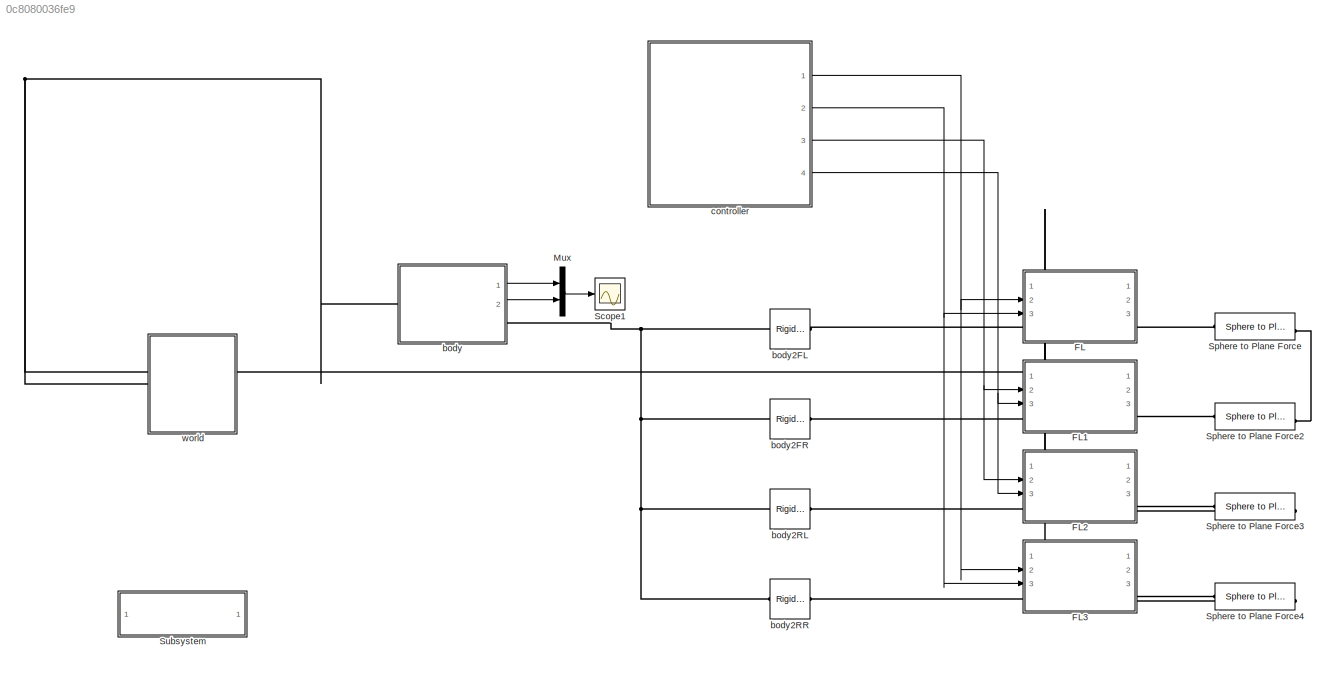
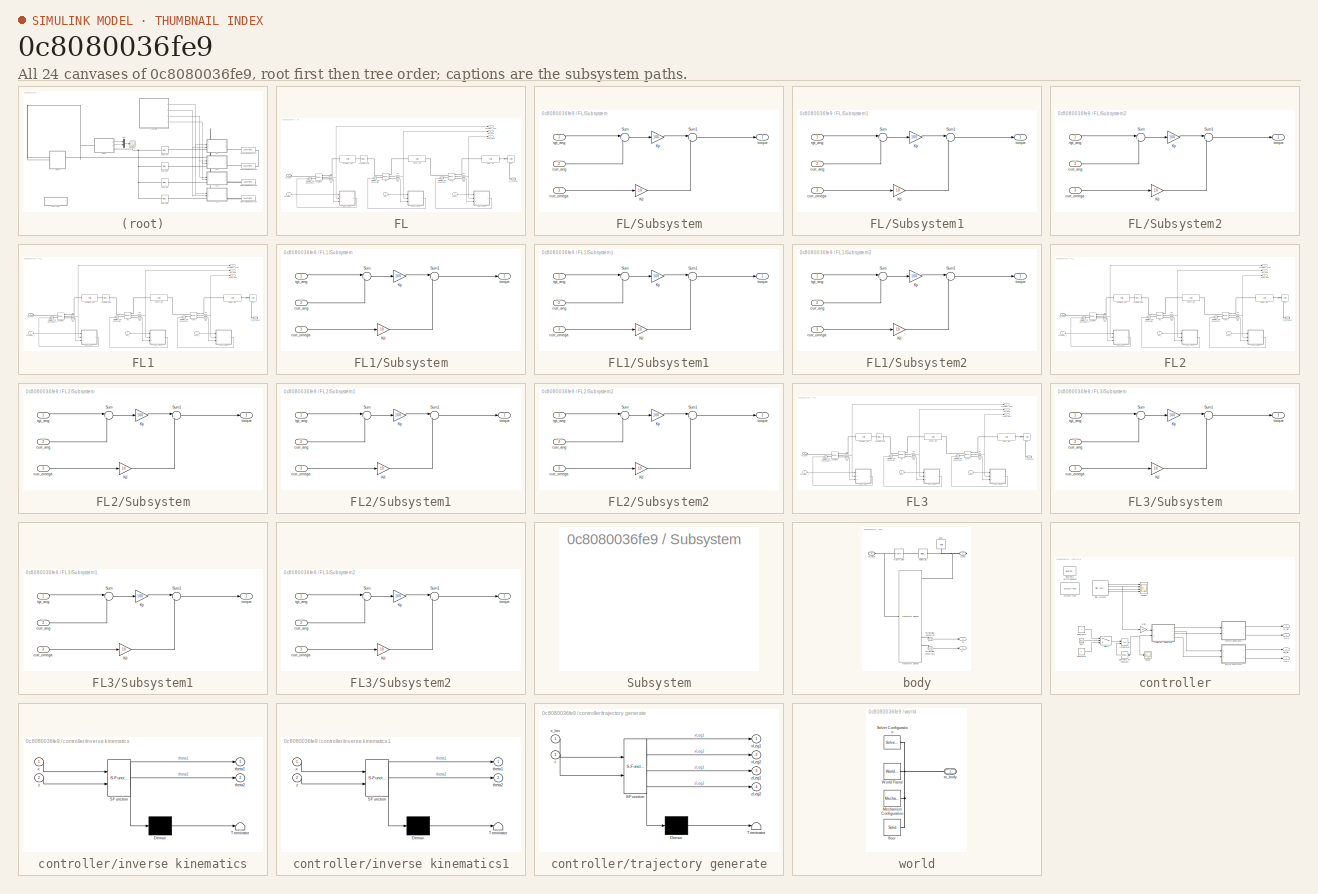
[diagram: thumbnail index - all 24 canvases of the model, root first then tree order]
MODEL slx_0c8080036fe9
KIND model
CONFIG AbsTol = auto
CONFIG EnableMultiTasking = on
CONFIG FixedStep = 0.001
CONFIG MaxStep = auto
CONFIG MinStep = auto
CONFIG RelTol = 1e-3
CONFIG SampleTimeConstraint = Unconstrained
CONFIG Solver = FixedStepAuto
CONFIG SolverName = FixedStepAuto
CONFIG StartTime = 0.0
CONFIG StopTime = 10
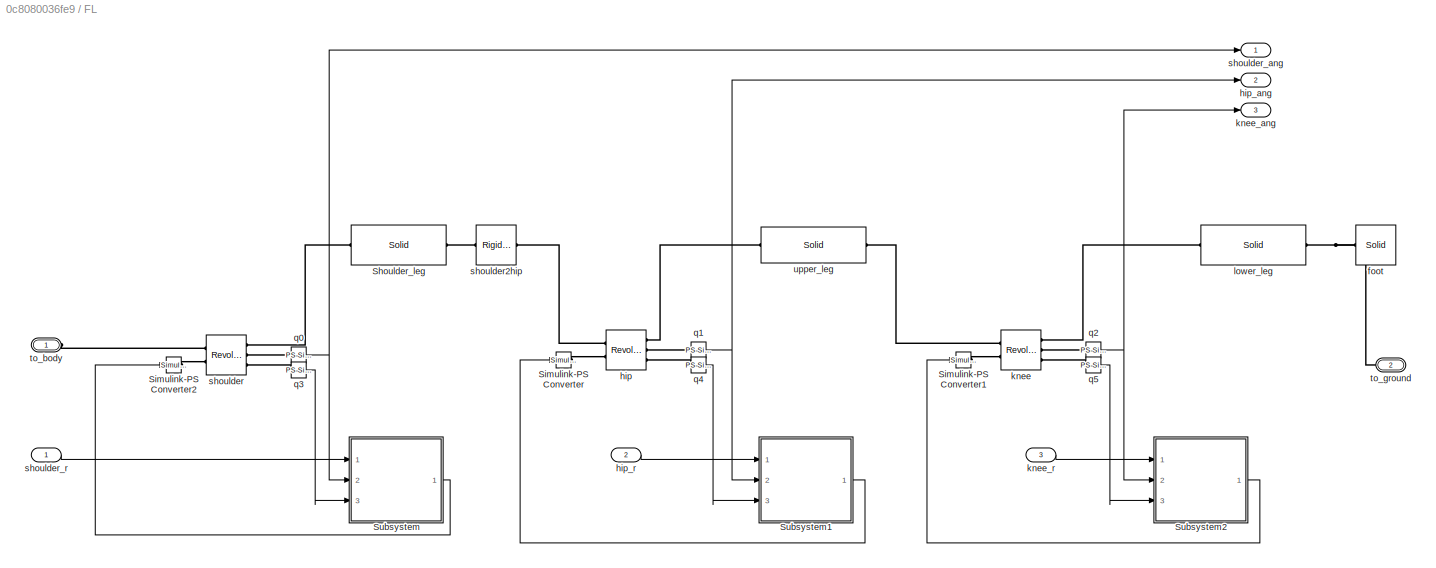
BLOCK [SubSystem] FL
  Ports = [3, 3, 0, 0, 0, 1, 1]
  RequestExecContextInheritance = off
BLOCK [Reference] FL/Shoulder_leg  REF=sm_lib/Body Elements/Solid
  Ports = [0, 0, 0, 0, 0, 1, 1]
  SourceBlock = sm_lib/Body Elements/Solid
  SourceProductBaseCode = MS
  SourceProductName = Simscape Multibody
  SourceType = Solid
BLOCK [Reference] FL/Simulink-PS Converter  REF=nesl_utility/Simulink-PS
Converter
  Ports = [1, 0, 0, 0, 0, 0, 1]
  SourceBlock = nesl_utility/Simulink-PS\nConverter
  SourceProductBaseCode = SS
  SourceProductName = Simscape
  SourceType = Simulink-PS\nConverter
BLOCK [Reference] FL/Simulink-PS Converter1  REF=nesl_utility/Simulink-PS
Converter
  Ports = [1, 0, 0, 0, 0, 0, 1]
  SourceBlock = nesl_utility/Simulink-PS\nConverter
  SourceProductBaseCode = SS
  SourceProductName = Simscape
  SourceType = Simulink-PS\nConverter
BLOCK [Reference] FL/Simulink-PS Converter2  REF=nesl_utility/Simulink-PS
Converter
  Ports = [1, 0, 0, 0, 0, 0, 1]
  SourceBlock = nesl_utility/Simulink-PS\nConverter
  SourceProductBaseCode = SS
  SourceProductName = Simscape
  SourceType = Simulink-PS\nConverter
BLOCK [SubSystem] FL/Subsystem
  Ports = [3, 1]
  RequestExecContextInheritance = off
BLOCK [Gain] FL/Subsystem/Kd
  Gain = 10
  OutDataTypeStr = Inherit: Inherit via internal rule
  ParamDataTypeStr = Inherit: Inherit via internal rule
  SaturateOnIntegerOverflow = off
BLOCK [Gain] FL/Subsystem/Kp
  Gain = 100
  OutDataTypeStr = Inherit: Inherit via internal rule
  ParamDataTypeStr = Inherit: Inherit via internal rule
  SaturateOnIntegerOverflow = off
BLOCK [Sum] FL/Subsystem/Sum
  IconShape = round
  InputSameDT = off
  Inputs = |+-
  OutDataTypeStr = Inherit: Inherit via internal rule
  Ports = [2, 1]
  SaturateOnIntegerOverflow = off
BLOCK [Sum] FL/Subsystem/Sum1
  IconShape = round
  InputSameDT = off
  Inputs = |+-
  OutDataTypeStr = Inherit: Inherit via internal rule
  Ports = [2, 1]
  SaturateOnIntegerOverflow = off
BLOCK [Inport] FL/Subsystem/curr_ang
  IconDisplay = Port number
  Port = 2
BLOCK [Inport] FL/Subsystem/curr_omega
  IconDisplay = Port number
  Port = 3
BLOCK [Inport] FL/Subsystem/tgt_ang
  IconDisplay = Port number
BLOCK [Outport] FL/Subsystem/torque
  IconDisplay = Port number
BLOCK [SubSystem] FL/Subsystem1
  Ports = [3, 1]
  RequestExecContextInheritance = off
BLOCK [Gain] FL/Subsystem1/Kd
  Gain = 10
  OutDataTypeStr = Inherit: Inherit via internal rule
  ParamDataTypeStr = Inherit: Inherit via internal rule
  SaturateOnIntegerOverflow = off
BLOCK [Gain] FL/Subsystem1/Kp
  Gain = 100
  OutDataTypeStr = Inherit: Inherit via internal rule
  ParamDataTypeStr = Inherit: Inherit via internal rule
  SaturateOnIntegerOverflow = off
BLOCK [Sum] FL/Subsystem1/Sum
  IconShape = round
  InputSameDT = off
  Inputs = |+-
  OutDataTypeStr = Inherit: Inherit via internal rule
  Ports = [2, 1]
  SaturateOnIntegerOverflow = off
BLOCK [Sum] FL/Subsystem1/Sum1
  IconShape = round
  InputSameDT = off
  Inputs = |+-
  OutDataTypeStr = Inherit: Inherit via internal rule
  Ports = [2, 1]
  SaturateOnIntegerOverflow = off
BLOCK [Inport] FL/Subsystem1/curr_ang
  IconDisplay = Port number
  Port = 2
BLOCK [Inport] FL/Subsystem1/curr_omega
  IconDisplay = Port number
  Port = 3
BLOCK [Inport] FL/Subsystem1/tgt_ang
  IconDisplay = Port number
BLOCK [Outport] FL/Subsystem1/torque
  IconDisplay = Port number
BLOCK [SubSystem] FL/Subsystem2
  Ports = [3, 1]
  RequestExecContextInheritance = off
BLOCK [Gain] FL/Subsystem2/Kd
  Gain = 10
  OutDataTypeStr = Inherit: Inherit via internal rule
  ParamDataTypeStr = Inherit: Inherit via internal rule
  SaturateOnIntegerOverflow = off
BLOCK [Gain] FL/Subsystem2/Kp
  Gain = 100
  OutDataTypeStr = Inherit: Inherit via internal rule
  ParamDataTypeStr = Inherit: Inherit via internal rule
  SaturateOnIntegerOverflow = off
BLOCK [Sum] FL/Subsystem2/Sum
  IconShape = round
  InputSameDT = off
  Inputs = |+-
  OutDataTypeStr = Inherit: Inherit via internal rule
  Ports = [2, 1]
  SaturateOnIntegerOverflow = off
BLOCK [Sum] FL/Subsystem2/Sum1
  IconShape = round
  InputSameDT = off
  Inputs = |+-
  OutDataTypeStr = Inherit: Inherit via internal rule
  Ports = [2, 1]
  SaturateOnIntegerOverflow = off
BLOCK [Inport] FL/Subsystem2/curr_ang
  IconDisplay = Port number
  Port = 2
BLOCK [Inport] FL/Subsystem2/curr_omega
  IconDisplay = Port number
  Port = 3
BLOCK [Inport] FL/Subsystem2/tgt_ang
  IconDisplay = Port number
BLOCK [Outport] FL/Subsystem2/torque
  IconDisplay = Port number
BLOCK [Reference] FL/foot  REF=sm_lib/Body Elements/Solid
  Ports = [0, 0, 0, 0, 0, 0, 1]
  SourceBlock = sm_lib/Body Elements/Solid
  SourceProductBaseCode = MS
  SourceProductName = Simscape Multibody
  SourceType = Solid
BLOCK [Reference] FL/hip  REF=sm_lib/Joints/Revolute Joint
  Ports = [0, 0, 0, 0, 0, 2, 3]
  SourceBlock = sm_lib/Joints/Revolute Joint
  SourceProductBaseCode = MS
  SourceProductName = Simscape Multibody
  SourceType = Revolute Joint
BLOCK [Outport] FL/hip_ang
  IconDisplay = Port number
  Port = 2
BLOCK [Inport] FL/hip_r
  IconDisplay = Port number
  Port = 2
BLOCK [Reference] FL/knee  REF=sm_lib/Joints/Revolute Joint
  Ports = [0, 0, 0, 0, 0, 2, 3]
  SourceBlock = sm_lib/Joints/Revolute Joint
  SourceProductBaseCode = MS
  SourceProductName = Simscape Multibody
  SourceType = Revolute Joint
BLOCK [Outport] FL/knee_ang
  IconDisplay = Port number
  Port = 3
BLOCK [Inport] FL/knee_r
  IconDisplay = Port number
  Port = 3
BLOCK [Reference] FL/lower_leg  REF=sm_lib/Body Elements/Solid
  Ports = [0, 0, 0, 0, 0, 1, 1]
  SourceBlock = sm_lib/Body Elements/Solid
  SourceProductBaseCode = MS
  SourceProductName = Simscape Multibody
  SourceType = Solid
BLOCK [Reference] FL/q0  REF=nesl_utility/PS-Simulink
Converter
  Ports = [0, 1, 0, 0, 0, 1]
  SourceBlock = nesl_utility/PS-Simulink\nConverter
  SourceProductBaseCode = SS
  SourceProductName = Simscape
  SourceType = PS-Simulink\nConverter
BLOCK [Reference] FL/q1  REF=nesl_utility/PS-Simulink
Converter
  Ports = [0, 1, 0, 0, 0, 1]
  SourceBlock = nesl_utility/PS-Simulink\nConverter
  SourceProductBaseCode = SS
  SourceProductName = Simscape
  SourceType = PS-Simulink\nConverter
BLOCK [Reference] FL/q2  REF=nesl_utility/PS-Simulink
Converter
  Ports = [0, 1, 0, 0, 0, 1]
  SourceBlock = nesl_utility/PS-Simulink\nConverter
  SourceProductBaseCode = SS
  SourceProductName = Simscape
  SourceType = PS-Simulink\nConverter
BLOCK [Reference] FL/q3  REF=nesl_utility/PS-Simulink
Converter
  Ports = [0, 1, 0, 0, 0, 1]
  SourceBlock = nesl_utility/PS-Simulink\nConverter
  SourceProductBaseCode = SS
  SourceProductName = Simscape
  SourceType = PS-Simulink\nConverter
BLOCK [Reference] FL/q4  REF=nesl_utility/PS-Simulink
Converter
  Ports = [0, 1, 0, 0, 0, 1]
  SourceBlock = nesl_utility/PS-Simulink\nConverter
  SourceProductBaseCode = SS
  SourceProductName = Simscape
  SourceType = PS-Simulink\nConverter
BLOCK [Reference] FL/q5  REF=nesl_utility/PS-Simulink
Converter
  Ports = [0, 1, 0, 0, 0, 1]
  SourceBlock = nesl_utility/PS-Simulink\nConverter
  SourceProductBaseCode = SS
  SourceProductName = Simscape
  SourceType = PS-Simulink\nConverter
BLOCK [Reference] FL/shoulder  REF=sm_lib/Joints/Revolute Joint
  Ports = [0, 0, 0, 0, 0, 2, 3]
  SourceBlock = sm_lib/Joints/Revolute Joint
  SourceProductBaseCode = MS
  SourceProductName = Simscape Multibody
  SourceType = Revolute Joint
BLOCK [Reference] FL/shoulder2hip  REF=sm_lib/Frames and
Transforms/Rigid
Transform
  Ports = [0, 0, 0, 0, 0, 1, 1]
  SourceBlock = sm_lib/Frames and\nTransforms/Rigid\nTransform
  SourceProductBaseCode = MS
  SourceProductName = Simscape Multibody
  SourceType = Rigid\nTransform
BLOCK [Outport] FL/shoulder_ang
  IconDisplay = Port number
BLOCK [Inport] FL/shoulder_r
  IconDisplay = Port number
BLOCK [PMIOPort] FL/to_body
  Side = Left
BLOCK [PMIOPort] FL/to_ground
  Port = 2
  Side = Right
BLOCK [Reference] FL/upper_leg  REF=sm_lib/Body Elements/Solid
  Ports = [0, 0, 0, 0, 0, 1, 1]
  SourceBlock = sm_lib/Body Elements/Solid
  SourceProductBaseCode = MS
  SourceProductName = Simscape Multibody
  SourceType = Solid
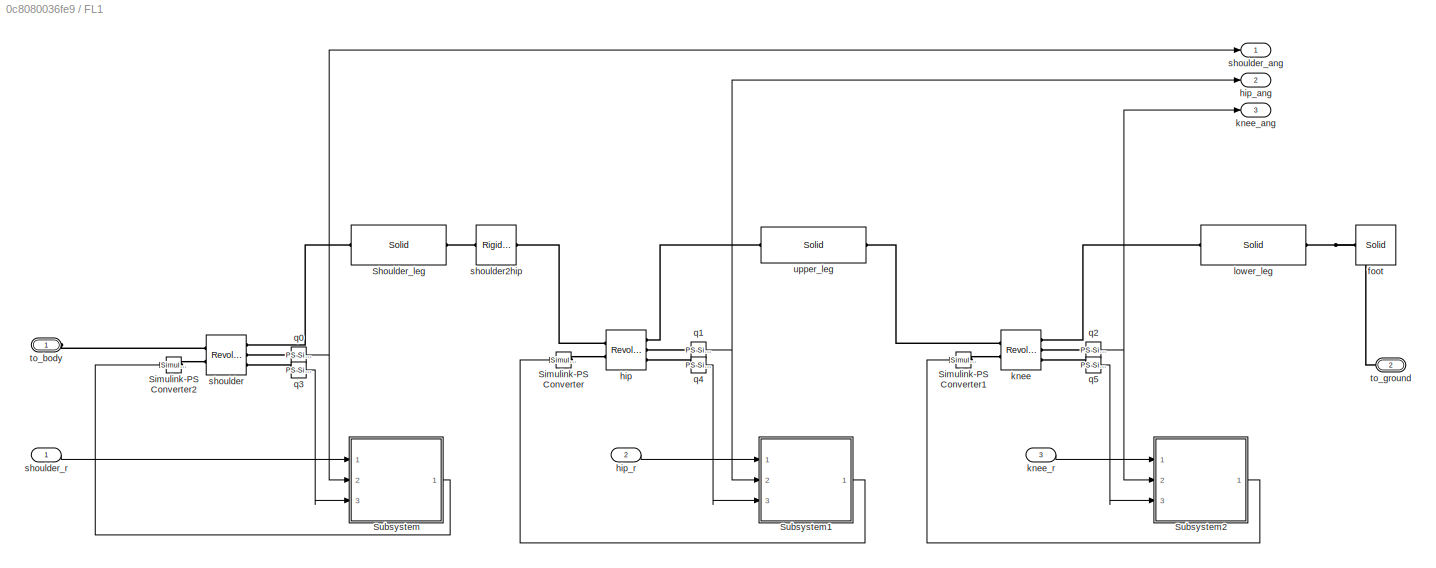
BLOCK [SubSystem] FL1
  Ports = [3, 3, 0, 0, 0, 1, 1]
  RequestExecContextInheritance = off
BLOCK [Reference] FL1/Shoulder_leg  REF=sm_lib/Body Elements/Solid
  Ports = [0, 0, 0, 0, 0, 1, 1]
  SourceBlock = sm_lib/Body Elements/Solid
  SourceProductBaseCode = MS
  SourceProductName = Simscape Multibody
  SourceType = Solid
BLOCK [Reference] FL1/Simulink-PS Converter  REF=nesl_utility/Simulink-PS
Converter
  Ports = [1, 0, 0, 0, 0, 0, 1]
  SourceBlock = nesl_utility/Simulink-PS\nConverter
  SourceProductBaseCode = SS
  SourceProductName = Simscape
  SourceType = Simulink-PS\nConverter
BLOCK [Reference] FL1/Simulink-PS Converter1  REF=nesl_utility/Simulink-PS
Converter
  Ports = [1, 0, 0, 0, 0, 0, 1]
  SourceBlock = nesl_utility/Simulink-PS\nConverter
  SourceProductBaseCode = SS
  SourceProductName = Simscape
  SourceType = Simulink-PS\nConverter
BLOCK [Reference] FL1/Simulink-PS Converter2  REF=nesl_utility/Simulink-PS
Converter
  Ports = [1, 0, 0, 0, 0, 0, 1]
  SourceBlock = nesl_utility/Simulink-PS\nConverter
  SourceProductBaseCode = SS
  SourceProductName = Simscape
  SourceType = Simulink-PS\nConverter
BLOCK [SubSystem] FL1/Subsystem
  Ports = [3, 1]
  RequestExecContextInheritance = off
BLOCK [Gain] FL1/Subsystem/Kd
  Gain = 10
  OutDataTypeStr = Inherit: Inherit via internal rule
  ParamDataTypeStr = Inherit: Inherit via internal rule
  SaturateOnIntegerOverflow = off
BLOCK [Gain] FL1/Subsystem/Kp
  Gain = 100
  OutDataTypeStr = Inherit: Inherit via internal rule
  ParamDataTypeStr = Inherit: Inherit via internal rule
  SaturateOnIntegerOverflow = off
BLOCK [Sum] FL1/Subsystem/Sum
  IconShape = round
  InputSameDT = off
  Inputs = |+-
  OutDataTypeStr = Inherit: Inherit via internal rule
  Ports = [2, 1]
  SaturateOnIntegerOverflow = off
BLOCK [Sum] FL1/Subsystem/Sum1
  IconShape = round
  InputSameDT = off
  Inputs = |+-
  OutDataTypeStr = Inherit: Inherit via internal rule
  Ports = [2, 1]
  SaturateOnIntegerOverflow = off
BLOCK [Inport] FL1/Subsystem/curr_ang
  IconDisplay = Port number
  Port = 2
BLOCK [Inport] FL1/Subsystem/curr_omega
  IconDisplay = Port number
  Port = 3
BLOCK [Inport] FL1/Subsystem/tgt_ang
  IconDisplay = Port number
BLOCK [Outport] FL1/Subsystem/torque
  IconDisplay = Port number
BLOCK [SubSystem] FL1/Subsystem1
  Ports = [3, 1]
  RequestExecContextInheritance = off
BLOCK [Gain] FL1/Subsystem1/Kd
  Gain = 10
  OutDataTypeStr = Inherit: Inherit via internal rule
  ParamDataTypeStr = Inherit: Inherit via internal rule
  SaturateOnIntegerOverflow = off
BLOCK [Gain] FL1/Subsystem1/Kp
  Gain = 100
  OutDataTypeStr = Inherit: Inherit via internal rule
  ParamDataTypeStr = Inherit: Inherit via internal rule
  SaturateOnIntegerOverflow = off
BLOCK [Sum] FL1/Subsystem1/Sum
  IconShape = round
  InputSameDT = off
  Inputs = |+-
  OutDataTypeStr = Inherit: Inherit via internal rule
  Ports = [2, 1]
  SaturateOnIntegerOverflow = off
BLOCK [Sum] FL1/Subsystem1/Sum1
  IconShape = round
  InputSameDT = off
  Inputs = |+-
  OutDataTypeStr = Inherit: Inherit via internal rule
  Ports = [2, 1]
  SaturateOnIntegerOverflow = off
BLOCK [Inport] FL1/Subsystem1/curr_ang
  IconDisplay = Port number
  Port = 2
BLOCK [Inport] FL1/Subsystem1/curr_omega
  IconDisplay = Port number
  Port = 3
BLOCK [Inport] FL1/Subsystem1/tgt_ang
  IconDisplay = Port number
BLOCK [Outport] FL1/Subsystem1/torque
  IconDisplay = Port number
BLOCK [SubSystem] FL1/Subsystem2
  Ports = [3, 1]
  RequestExecContextInheritance = off
BLOCK [Gain] FL1/Subsystem2/Kd
  Gain = 10
  OutDataTypeStr = Inherit: Inherit via internal rule
  ParamDataTypeStr = Inherit: Inherit via internal rule
  SaturateOnIntegerOverflow = off
BLOCK [Gain] FL1/Subsystem2/Kp
  Gain = 100
  OutDataTypeStr = Inherit: Inherit via internal rule
  ParamDataTypeStr = Inherit: Inherit via internal rule
  SaturateOnIntegerOverflow = off
BLOCK [Sum] FL1/Subsystem2/Sum
  IconShape = round
  InputSameDT = off
  Inputs = |+-
  OutDataTypeStr = Inherit: Inherit via internal rule
  Ports = [2, 1]
  SaturateOnIntegerOverflow = off
BLOCK [Sum] FL1/Subsystem2/Sum1
  IconShape = round
  InputSameDT = off
  Inputs = |+-
  OutDataTypeStr = Inherit: Inherit via internal rule
  Ports = [2, 1]
  SaturateOnIntegerOverflow = off
BLOCK [Inport] FL1/Subsystem2/curr_ang
  IconDisplay = Port number
  Port = 2
BLOCK [Inport] FL1/Subsystem2/curr_omega
  IconDisplay = Port number
  Port = 3
BLOCK [Inport] FL1/Subsystem2/tgt_ang
  IconDisplay = Port number
BLOCK [Outport] FL1/Subsystem2/torque
  IconDisplay = Port number
BLOCK [Reference] FL1/foot  REF=sm_lib/Body Elements/Solid
  Ports = [0, 0, 0, 0, 0, 0, 1]
  SourceBlock = sm_lib/Body Elements/Solid
  SourceProductBaseCode = MS
  SourceProductName = Simscape Multibody
  SourceType = Solid
BLOCK [Reference] FL1/hip  REF=sm_lib/Joints/Revolute Joint
  Ports = [0, 0, 0, 0, 0, 2, 3]
  SourceBlock = sm_lib/Joints/Revolute Joint
  SourceProductBaseCode = MS
  SourceProductName = Simscape Multibody
  SourceType = Revolute Joint
BLOCK [Outport] FL1/hip_ang
  IconDisplay = Port number
  Port = 2
BLOCK [Inport] FL1/hip_r
  IconDisplay = Port number
  Port = 2
BLOCK [Reference] FL1/knee  REF=sm_lib/Joints/Revolute Joint
  Ports = [0, 0, 0, 0, 0, 2, 3]
  SourceBlock = sm_lib/Joints/Revolute Joint
  SourceProductBaseCode = MS
  SourceProductName = Simscape Multibody
  SourceType = Revolute Joint
BLOCK [Outport] FL1/knee_ang
  IconDisplay = Port number
  Port = 3
BLOCK [Inport] FL1/knee_r
  IconDisplay = Port number
  Port = 3
BLOCK [Reference] FL1/lower_leg  REF=sm_lib/Body Elements/Solid
  Ports = [0, 0, 0, 0, 0, 1, 1]
  SourceBlock = sm_lib/Body Elements/Solid
  SourceProductBaseCode = MS
  SourceProductName = Simscape Multibody
  SourceType = Solid
BLOCK [Reference] FL1/q0  REF=nesl_utility/PS-Simulink
Converter
  Ports = [0, 1, 0, 0, 0, 1]
  SourceBlock = nesl_utility/PS-Simulink\nConverter
  SourceProductBaseCode = SS
  SourceProductName = Simscape
  SourceType = PS-Simulink\nConverter
BLOCK [Reference] FL1/q1  REF=nesl_utility/PS-Simulink
Converter
  Ports = [0, 1, 0, 0, 0, 1]
  SourceBlock = nesl_utility/PS-Simulink\nConverter
  SourceProductBaseCode = SS
  SourceProductName = Simscape
  SourceType = PS-Simulink\nConverter
BLOCK [Reference] FL1/q2  REF=nesl_utility/PS-Simulink
Converter
  Ports = [0, 1, 0, 0, 0, 1]
  SourceBlock = nesl_utility/PS-Simulink\nConverter
  SourceProductBaseCode = SS
  SourceProductName = Simscape
  SourceType = PS-Simulink\nConverter
BLOCK [Reference] FL1/q3  REF=nesl_utility/PS-Simulink
Converter
  Ports = [0, 1, 0, 0, 0, 1]
  SourceBlock = nesl_utility/PS-Simulink\nConverter
  SourceProductBaseCode = SS
  SourceProductName = Simscape
  SourceType = PS-Simulink\nConverter
BLOCK [Reference] FL1/q4  REF=nesl_utility/PS-Simulink
Converter
  Ports = [0, 1, 0, 0, 0, 1]
  SourceBlock = nesl_utility/PS-Simulink\nConverter
  SourceProductBaseCode = SS
  SourceProductName = Simscape
  SourceType = PS-Simulink\nConverter
BLOCK [Reference] FL1/q5  REF=nesl_utility/PS-Simulink
Converter
  Ports = [0, 1, 0, 0, 0, 1]
  SourceBlock = nesl_utility/PS-Simulink\nConverter
  SourceProductBaseCode = SS
  SourceProductName = Simscape
  SourceType = PS-Simulink\nConverter
BLOCK [Reference] FL1/shoulder  REF=sm_lib/Joints/Revolute Joint
  Ports = [0, 0, 0, 0, 0, 2, 3]
  SourceBlock = sm_lib/Joints/Revolute Joint
  SourceProductBaseCode = MS
  SourceProductName = Simscape Multibody
  SourceType = Revolute Joint
BLOCK [Reference] FL1/shoulder2hip  REF=sm_lib/Frames and
Transforms/Rigid
Transform
  Ports = [0, 0, 0, 0, 0, 1, 1]
  SourceBlock = sm_lib/Frames and\nTransforms/Rigid\nTransform
  SourceProductBaseCode = MS
  SourceProductName = Simscape Multibody
  SourceType = Rigid\nTransform
BLOCK [Outport] FL1/shoulder_ang
  IconDisplay = Port number
BLOCK [Inport] FL1/shoulder_r
  IconDisplay = Port number
BLOCK [PMIOPort] FL1/to_body
  Side = Left
BLOCK [PMIOPort] FL1/to_ground
  Port = 2
  Side = Right
BLOCK [Reference] FL1/upper_leg  REF=sm_lib/Body Elements/Solid
  Ports = [0, 0, 0, 0, 0, 1, 1]
  SourceBlock = sm_lib/Body Elements/Solid
  SourceProductBaseCode = MS
  SourceProductName = Simscape Multibody
  SourceType = Solid
BLOCK [SubSystem] FL2
  Ports = [3, 3, 0, 0, 0, 1, 1]
  RequestExecContextInheritance = off
BLOCK [Reference] FL2/Shoulder_leg  REF=sm_lib/Body Elements/Solid
  Ports = [0, 0, 0, 0, 0, 1, 1]
  SourceBlock = sm_lib/Body Elements/Solid
  SourceProductBaseCode = MS
  SourceProductName = Simscape Multibody
  SourceType = Solid
BLOCK [Reference] FL2/Simulink-PS Converter  REF=nesl_utility/Simulink-PS
Converter
  Ports = [1, 0, 0, 0, 0, 0, 1]
  SourceBlock = nesl_utility/Simulink-PS\nConverter
  SourceProductBaseCode = SS
  SourceProductName = Simscape
  SourceType = Simulink-PS\nConverter
BLOCK [Reference] FL2/Simulink-PS Converter1  REF=nesl_utility/Simulink-PS
Converter
  Ports = [1, 0, 0, 0, 0, 0, 1]
  SourceBlock = nesl_utility/Simulink-PS\nConverter
  SourceProductBaseCode = SS
  SourceProductName = Simscape
  SourceType = Simulink-PS\nConverter
BLOCK [Reference] FL2/Simulink-PS Converter2  REF=nesl_utility/Simulink-PS
Converter
  Ports = [1, 0, 0, 0, 0, 0, 1]
  SourceBlock = nesl_utility/Simulink-PS\nConverter
  SourceProductBaseCode = SS
  SourceProductName = Simscape
  SourceType = Simulink-PS\nConverter
BLOCK [SubSystem] FL2/Subsystem
  Ports = [3, 1]
  RequestExecContextInheritance = off
BLOCK [Gain] FL2/Subsystem/Kd
  Gain = 10
  OutDataTypeStr = Inherit: Inherit via internal rule
  ParamDataTypeStr = Inherit: Inherit via internal rule
  SaturateOnIntegerOverflow = off
BLOCK [Gain] FL2/Subsystem/Kp
  Gain = 100
  OutDataTypeStr = Inherit: Inherit via internal rule
  ParamDataTypeStr = Inherit: Inherit via internal rule
  SaturateOnIntegerOverflow = off
BLOCK [Sum] FL2/Subsystem/Sum
  IconShape = round
  InputSameDT = off
  Inputs = |+-
  OutDataTypeStr = Inherit: Inherit via internal rule
  Ports = [2, 1]
  SaturateOnIntegerOverflow = off
BLOCK [Sum] FL2/Subsystem/Sum1
  IconShape = round
  InputSameDT = off
  Inputs = |+-
  OutDataTypeStr = Inherit: Inherit via internal rule
  Ports = [2, 1]
  SaturateOnIntegerOverflow = off
BLOCK [Inport] FL2/Subsystem/curr_ang
  IconDisplay = Port number
  Port = 2
BLOCK [Inport] FL2/Subsystem/curr_omega
  IconDisplay = Port number
  Port = 3
BLOCK [Inport] FL2/Subsystem/tgt_ang
  IconDisplay = Port number
BLOCK [Outport] FL2/Subsystem/torque
  IconDisplay = Port number
BLOCK [SubSystem] FL2/Subsystem1
  Ports = [3, 1]
  RequestExecContextInheritance = off
BLOCK [Gain] FL2/Subsystem1/Kd
  Gain = 10
  OutDataTypeStr = Inherit: Inherit via internal rule
  ParamDataTypeStr = Inherit: Inherit via internal rule
  SaturateOnIntegerOverflow = off
BLOCK [Gain] FL2/Subsystem1/Kp
  Gain = 100
  OutDataTypeStr = Inherit: Inherit via internal rule
  ParamDataTypeStr = Inherit: Inherit via internal rule
  SaturateOnIntegerOverflow = off
BLOCK [Sum] FL2/Subsystem1/Sum
  IconShape = round
  InputSameDT = off
  Inputs = |+-
  OutDataTypeStr = Inherit: Inherit via internal rule
  Ports = [2, 1]
  SaturateOnIntegerOverflow = off
BLOCK [Sum] FL2/Subsystem1/Sum1
  IconShape = round
  InputSameDT = off
  Inputs = |+-
  OutDataTypeStr = Inherit: Inherit via internal rule
  Ports = [2, 1]
  SaturateOnIntegerOverflow = off
BLOCK [Inport] FL2/Subsystem1/curr_ang
  IconDisplay = Port number
  Port = 2
BLOCK [Inport] FL2/Subsystem1/curr_omega
  IconDisplay = Port number
  Port = 3
BLOCK [Inport] FL2/Subsystem1/tgt_ang
  IconDisplay = Port number
BLOCK [Outport] FL2/Subsystem1/torque
  IconDisplay = Port number
BLOCK [SubSystem] FL2/Subsystem2
  Ports = [3, 1]
  RequestExecContextInheritance = off
BLOCK [Gain] FL2/Subsystem2/Kd
  Gain = 10
  OutDataTypeStr = Inherit: Inherit via internal rule
  ParamDataTypeStr = Inherit: Inherit via internal rule
  SaturateOnIntegerOverflow = off
BLOCK [Gain] FL2/Subsystem2/Kp
  Gain = 100
  OutDataTypeStr = Inherit: Inherit via internal rule
  ParamDataTypeStr = Inherit: Inherit via internal rule
  SaturateOnIntegerOverflow = off
BLOCK [Sum] FL2/Subsystem2/Sum
  IconShape = round
  InputSameDT = off
  Inputs = |+-
  OutDataTypeStr = Inherit: Inherit via internal rule
  Ports = [2, 1]
  SaturateOnIntegerOverflow = off
BLOCK [Sum] FL2/Subsystem2/Sum1
  IconShape = round
  InputSameDT = off
  Inputs = |+-
  OutDataTypeStr = Inherit: Inherit via internal rule
  Ports = [2, 1]
  SaturateOnIntegerOverflow = off
BLOCK [Inport] FL2/Subsystem2/curr_ang
  IconDisplay = Port number
  Port = 2
BLOCK [Inport] FL2/Subsystem2/curr_omega
  IconDisplay = Port number
  Port = 3
BLOCK [Inport] FL2/Subsystem2/tgt_ang
  IconDisplay = Port number
BLOCK [Outport] FL2/Subsystem2/torque
  IconDisplay = Port number
BLOCK [Reference] FL2/foot  REF=sm_lib/Body Elements/Solid
  Ports = [0, 0, 0, 0, 0, 0, 1]
  SourceBlock = sm_lib/Body Elements/Solid
  SourceProductBaseCode = MS
  SourceProductName = Simscape Multibody
  SourceType = Solid
BLOCK [Reference] FL2/hip  REF=sm_lib/Joints/Revolute Joint
  Ports = [0, 0, 0, 0, 0, 2, 3]
  SourceBlock = sm_lib/Joints/Revolute Joint
  SourceProductBaseCode = MS
  SourceProductName = Simscape Multibody
  SourceType = Revolute Joint
BLOCK [Outport] FL2/hip_ang
  IconDisplay = Port number
  Port = 2
BLOCK [Inport] FL2/hip_r
  IconDisplay = Port number
  Port = 2
BLOCK [Reference] FL2/knee  REF=sm_lib/Joints/Revolute Joint
  Ports = [0, 0, 0, 0, 0, 2, 3]
  SourceBlock = sm_lib/Joints/Revolute Joint
  SourceProductBaseCode = MS
  SourceProductName = Simscape Multibody
  SourceType = Revolute Joint
BLOCK [Outport] FL2/knee_ang
  IconDisplay = Port number
  Port = 3
BLOCK [Inport] FL2/knee_r
  IconDisplay = Port number
  Port = 3
BLOCK [Reference] FL2/lower_leg  REF=sm_lib/Body Elements/Solid
  Ports = [0, 0, 0, 0, 0, 1, 1]
  SourceBlock = sm_lib/Body Elements/Solid
  SourceProductBaseCode = MS
  SourceProductName = Simscape Multibody
  SourceType = Solid
BLOCK [Reference] FL2/q0  REF=nesl_utility/PS-Simulink
Converter
  Ports = [0, 1, 0, 0, 0, 1]
  SourceBlock = nesl_utility/PS-Simulink\nConverter
  SourceProductBaseCode = SS
  SourceProductName = Simscape
  SourceType = PS-Simulink\nConverter
BLOCK [Reference] FL2/q1  REF=nesl_utility/PS-Simulink
Converter
  Ports = [0, 1, 0, 0, 0, 1]
  SourceBlock = nesl_utility/PS-Simulink\nConverter
  SourceProductBaseCode = SS
  SourceProductName = Simscape
  SourceType = PS-Simulink\nConverter
BLOCK [Reference] FL2/q2  REF=nesl_utility/PS-Simulink
Converter
  Ports = [0, 1, 0, 0, 0, 1]
  SourceBlock = nesl_utility/PS-Simulink\nConverter
  SourceProductBaseCode = SS
  SourceProductName = Simscape
  SourceType = PS-Simulink\nConverter
BLOCK [Reference] FL2/q3  REF=nesl_utility/PS-Simulink
Converter
  Ports = [0, 1, 0, 0, 0, 1]
  SourceBlock = nesl_utility/PS-Simulink\nConverter
  SourceProductBaseCode = SS
  SourceProductName = Simscape
  SourceType = PS-Simulink\nConverter
BLOCK [Reference] FL2/q4  REF=nesl_utility/PS-Simulink
Converter
  Ports = [0, 1, 0, 0, 0, 1]
  SourceBlock = nesl_utility/PS-Simulink\nConverter
  SourceProductBaseCode = SS
  SourceProductName = Simscape
  SourceType = PS-Simulink\nConverter
BLOCK [Reference] FL2/q5  REF=nesl_utility/PS-Simulink
Converter
  Ports = [0, 1, 0, 0, 0, 1]
  SourceBlock = nesl_utility/PS-Simulink\nConverter
  SourceProductBaseCode = SS
  SourceProductName = Simscape
  SourceType = PS-Simulink\nConverter
BLOCK [Reference] FL2/shoulder  REF=sm_lib/Joints/Revolute Joint
  Ports = [0, 0, 0, 0, 0, 2, 3]
  SourceBlock = sm_lib/Joints/Revolute Joint
  SourceProductBaseCode = MS
  SourceProductName = Simscape Multibody
  SourceType = Revolute Joint
BLOCK [Reference] FL2/shoulder2hip  REF=sm_lib/Frames and
Transforms/Rigid
Transform
  Ports = [0, 0, 0, 0, 0, 1, 1]
  SourceBlock = sm_lib/Frames and\nTransforms/Rigid\nTransform
  SourceProductBaseCode = MS
  SourceProductName = Simscape Multibody
  SourceType = Rigid\nTransform
BLOCK [Outport] FL2/shoulder_ang
  IconDisplay = Port number
BLOCK [Inport] FL2/shoulder_r
  IconDisplay = Port number
BLOCK [PMIOPort] FL2/to_body
  Side = Left
BLOCK [PMIOPort] FL2/to_ground
  Port = 2
  Side = Right
BLOCK [Reference] FL2/upper_leg  REF=sm_lib/Body Elements/Solid
  Ports = [0, 0, 0, 0, 0, 1, 1]
  SourceBlock = sm_lib/Body Elements/Solid
  SourceProductBaseCode = MS
  SourceProductName = Simscape Multibody
  SourceType = Solid
BLOCK [SubSystem] FL3
  Ports = [3, 3, 0, 0, 0, 1, 1]
  RequestExecContextInheritance = off
BLOCK [Reference] FL3/Shoulder_leg  REF=sm_lib/Body Elements/Solid
  Ports = [0, 0, 0, 0, 0, 1, 1]
  SourceBlock = sm_lib/Body Elements/Solid
  SourceProductBaseCode = MS
  SourceProductName = Simscape Multibody
  SourceType = Solid
BLOCK [Reference] FL3/Simulink-PS Converter  REF=nesl_utility/Simulink-PS
Converter
  Ports = [1, 0, 0, 0, 0, 0, 1]
  SourceBlock = nesl_utility/Simulink-PS\nConverter
  SourceProductBaseCode = SS
  SourceProductName = Simscape
  SourceType = Simulink-PS\nConverter
BLOCK [Reference] FL3/Simulink-PS Converter1  REF=nesl_utility/Simulink-PS
Converter
  Ports = [1, 0, 0, 0, 0, 0, 1]
  SourceBlock = nesl_utility/Simulink-PS\nConverter
  SourceProductBaseCode = SS
  SourceProductName = Simscape
  SourceType = Simulink-PS\nConverter
BLOCK [Reference] FL3/Simulink-PS Converter2  REF=nesl_utility/Simulink-PS
Converter
  Ports = [1, 0, 0, 0, 0, 0, 1]
  SourceBlock = nesl_utility/Simulink-PS\nConverter
  SourceProductBaseCode = SS
  SourceProductName = Simscape
  SourceType = Simulink-PS\nConverter
BLOCK [SubSystem] FL3/Subsystem
  Ports = [3, 1]
  RequestExecContextInheritance = off
BLOCK [Gain] FL3/Subsystem/Kd
  Gain = 10
  OutDataTypeStr = Inherit: Inherit via internal rule
  ParamDataTypeStr = Inherit: Inherit via internal rule
  SaturateOnIntegerOverflow = off
BLOCK [Gain] FL3/Subsystem/Kp
  Gain = 100
  OutDataTypeStr = Inherit: Inherit via internal rule
  ParamDataTypeStr = Inherit: Inherit via internal rule
  SaturateOnIntegerOverflow = off
BLOCK [Sum] FL3/Subsystem/Sum
  IconShape = round
  InputSameDT = off
  Inputs = |+-
  OutDataTypeStr = Inherit: Inherit via internal rule
  Ports = [2, 1]
  SaturateOnIntegerOverflow = off
BLOCK [Sum] FL3/Subsystem/Sum1
  IconShape = round
  InputSameDT = off
  Inputs = |+-
  OutDataTypeStr = Inherit: Inherit via internal rule
  Ports = [2, 1]
  SaturateOnIntegerOverflow = off
BLOCK [Inport] FL3/Subsystem/curr_ang
  IconDisplay = Port number
  Port = 2
BLOCK [Inport] FL3/Subsystem/curr_omega
  IconDisplay = Port number
  Port = 3
BLOCK [Inport] FL3/Subsystem/tgt_ang
  IconDisplay = Port number
BLOCK [Outport] FL3/Subsystem/torque
  IconDisplay = Port number
BLOCK [SubSystem] FL3/Subsystem1
  Ports = [3, 1]
  RequestExecContextInheritance = off
BLOCK [Gain] FL3/Subsystem1/Kd
  Gain = 10
  OutDataTypeStr = Inherit: Inherit via internal rule
  ParamDataTypeStr = Inherit: Inherit via internal rule
  SaturateOnIntegerOverflow = off
BLOCK [Gain] FL3/Subsystem1/Kp
  Gain = 100
  OutDataTypeStr = Inherit: Inherit via internal rule
  ParamDataTypeStr = Inherit: Inherit via internal rule
  SaturateOnIntegerOverflow = off
BLOCK [Sum] FL3/Subsystem1/Sum
  IconShape = round
  InputSameDT = off
  Inputs = |+-
  OutDataTypeStr = Inherit: Inherit via internal rule
  Ports = [2, 1]
  SaturateOnIntegerOverflow = off
BLOCK [Sum] FL3/Subsystem1/Sum1
  IconShape = round
  InputSameDT = off
  Inputs = |+-
  OutDataTypeStr = Inherit: Inherit via internal rule
  Ports = [2, 1]
  SaturateOnIntegerOverflow = off
BLOCK [Inport] FL3/Subsystem1/curr_ang
  IconDisplay = Port number
  Port = 2
BLOCK [Inport] FL3/Subsystem1/curr_omega
  IconDisplay = Port number
  Port = 3
BLOCK [Inport] FL3/Subsystem1/tgt_ang
  IconDisplay = Port number
BLOCK [Outport] FL3/Subsystem1/torque
  IconDisplay = Port number
BLOCK [SubSystem] FL3/Subsystem2
  Ports = [3, 1]
  RequestExecContextInheritance = off
BLOCK [Gain] FL3/Subsystem2/Kd
  Gain = 10
  OutDataTypeStr = Inherit: Inherit via internal rule
  ParamDataTypeStr = Inherit: Inherit via internal rule
  SaturateOnIntegerOverflow = off
BLOCK [Gain] FL3/Subsystem2/Kp
  Gain = 100
  OutDataTypeStr = Inherit: Inherit via internal rule
  ParamDataTypeStr = Inherit: Inherit via internal rule
  SaturateOnIntegerOverflow = off
BLOCK [Sum] FL3/Subsystem2/Sum
  IconShape = round
  InputSameDT = off
  Inputs = |+-
  OutDataTypeStr = Inherit: Inherit via internal rule
  Ports = [2, 1]
  SaturateOnIntegerOverflow = off
BLOCK [Sum] FL3/Subsystem2/Sum1
  IconShape = round
  InputSameDT = off
  Inputs = |+-
  OutDataTypeStr = Inherit: Inherit via internal rule
  Ports = [2, 1]
  SaturateOnIntegerOverflow = off
BLOCK [Inport] FL3/Subsystem2/curr_ang
  IconDisplay = Port number
  Port = 2
BLOCK [Inport] FL3/Subsystem2/curr_omega
  IconDisplay = Port number
  Port = 3
BLOCK [Inport] FL3/Subsystem2/tgt_ang
  IconDisplay = Port number
BLOCK [Outport] FL3/Subsystem2/torque
  IconDisplay = Port number
BLOCK [Reference] FL3/foot  REF=sm_lib/Body Elements/Solid
  Ports = [0, 0, 0, 0, 0, 0, 1]
  SourceBlock = sm_lib/Body Elements/Solid
  SourceProductBaseCode = MS
  SourceProductName = Simscape Multibody
  SourceType = Solid
BLOCK [Reference] FL3/hip  REF=sm_lib/Joints/Revolute Joint
  Ports = [0, 0, 0, 0, 0, 2, 3]
  SourceBlock = sm_lib/Joints/Revolute Joint
  SourceProductBaseCode = MS
  SourceProductName = Simscape Multibody
  SourceType = Revolute Joint
BLOCK [Outport] FL3/hip_ang
  IconDisplay = Port number
  Port = 2
BLOCK [Inport] FL3/hip_r
  IconDisplay = Port number
  Port = 2
BLOCK [Reference] FL3/knee  REF=sm_lib/Joints/Revolute Joint
  Ports = [0, 0, 0, 0, 0, 2, 3]
  SourceBlock = sm_lib/Joints/Revolute Joint
  SourceProductBaseCode = MS
  SourceProductName = Simscape Multibody
  SourceType = Revolute Joint
BLOCK [Outport] FL3/knee_ang
  IconDisplay = Port number
  Port = 3
BLOCK [Inport] FL3/knee_r
  IconDisplay = Port number
  Port = 3
BLOCK [Reference] FL3/lower_leg  REF=sm_lib/Body Elements/Solid
  Ports = [0, 0, 0, 0, 0, 1, 1]
  SourceBlock = sm_lib/Body Elements/Solid
  SourceProductBaseCode = MS
  SourceProductName = Simscape Multibody
  SourceType = Solid
BLOCK [Reference] FL3/q0  REF=nesl_utility/PS-Simulink
Converter
  Ports = [0, 1, 0, 0, 0, 1]
  SourceBlock = nesl_utility/PS-Simulink\nConverter
  SourceProductBaseCode = SS
  SourceProductName = Simscape
  SourceType = PS-Simulink\nConverter
BLOCK [Reference] FL3/q1  REF=nesl_utility/PS-Simulink
Converter
  Ports = [0, 1, 0, 0, 0, 1]
  SourceBlock = nesl_utility/PS-Simulink\nConverter
  SourceProductBaseCode = SS
  SourceProductName = Simscape
  SourceType = PS-Simulink\nConverter
BLOCK [Reference] FL3/q2  REF=nesl_utility/PS-Simulink
Converter
  Ports = [0, 1, 0, 0, 0, 1]
  SourceBlock = nesl_utility/PS-Simulink\nConverter
  SourceProductBaseCode = SS
  SourceProductName = Simscape
  SourceType = PS-Simulink\nConverter
BLOCK [Reference] FL3/q3  REF=nesl_utility/PS-Simulink
Converter
  Ports = [0, 1, 0, 0, 0, 1]
  SourceBlock = nesl_utility/PS-Simulink\nConverter
  SourceProductBaseCode = SS
  SourceProductName = Simscape
  SourceType = PS-Simulink\nConverter
BLOCK [Reference] FL3/q4  REF=nesl_utility/PS-Simulink
Converter
  Ports = [0, 1, 0, 0, 0, 1]
  SourceBlock = nesl_utility/PS-Simulink\nConverter
  SourceProductBaseCode = SS
  SourceProductName = Simscape
  SourceType = PS-Simulink\nConverter
BLOCK [Reference] FL3/q5  REF=nesl_utility/PS-Simulink
Converter
  Ports = [0, 1, 0, 0, 0, 1]
  SourceBlock = nesl_utility/PS-Simulink\nConverter
  SourceProductBaseCode = SS
  SourceProductName = Simscape
  SourceType = PS-Simulink\nConverter
BLOCK [Reference] FL3/shoulder  REF=sm_lib/Joints/Revolute Joint
  Ports = [0, 0, 0, 0, 0, 2, 3]
  SourceBlock = sm_lib/Joints/Revolute Joint
  SourceProductBaseCode = MS
  SourceProductName = Simscape Multibody
  SourceType = Revolute Joint
BLOCK [Reference] FL3/shoulder2hip  REF=sm_lib/Frames and
Transforms/Rigid
Transform
  Ports = [0, 0, 0, 0, 0, 1, 1]
  SourceBlock = sm_lib/Frames and\nTransforms/Rigid\nTransform
  SourceProductBaseCode = MS
  SourceProductName = Simscape Multibody
  SourceType = Rigid\nTransform
BLOCK [Outport] FL3/shoulder_ang
  IconDisplay = Port number
BLOCK [Inport] FL3/shoulder_r
  IconDisplay = Port number
BLOCK [PMIOPort] FL3/to_body
  Side = Left
BLOCK [PMIOPort] FL3/to_ground
  Port = 2
  Side = Right
BLOCK [Reference] FL3/upper_leg  REF=sm_lib/Body Elements/Solid
  Ports = [0, 0, 0, 0, 0, 1, 1]
  SourceBlock = sm_lib/Body Elements/Solid
  SourceProductBaseCode = MS
  SourceProductName = Simscape Multibody
  SourceType = Solid
BLOCK [Mux] Mux
  DisplayOption = bar
  Inputs = 2
  Ports = [2, 1]
BLOCK [Scope] Scope1
  Floating = off
  NumInputPorts = 1
  Ports = [1]
  ScopeSpecificationString = Simulink.scopes.TimeScopeBlockCfg('CurrentConfiguration', extmgr.ConfigurationSet(extmgr.Configuration('Core','General UI',true),extmgr.Configuration('Core','Source UI',true),extmgr.Configuration('Sources','WiredSimulink',true,'DataLoggingVariableName','ScopeData1'),extmgr.Configuration('Visuals','Time Domain',true,'SerializedDisplays',{struct('MinYLimReal','-1.4319','MaxYLimReal','0.8173','YLabel...<+1414ch>
BLOCK [Reference] Sphere to Plane Force  REF=Contact_Forces_Lib/3D/Sphere to Plane Force
  Ports = [0, 1, 0, 0, 0, 1, 1]
  SourceBlock = Contact_Forces_Lib/3D/Sphere to Plane Force
  SourceProductName = Simscape Multibody Contact Forces Library
  SourceType = Sphere to Plane Force
BLOCK [Reference] Sphere to Plane Force2  REF=Contact_Forces_Lib/3D/Sphere to Plane Force
  Ports = [0, 1, 0, 0, 0, 1, 1]
  SourceBlock = Contact_Forces_Lib/3D/Sphere to Plane Force
  SourceProductName = Simscape Multibody Contact Forces Library
  SourceType = Sphere to Plane Force
BLOCK [Reference] Sphere to Plane Force3  REF=Contact_Forces_Lib/3D/Sphere to Plane Force
  Ports = [0, 1, 0, 0, 0, 1, 1]
  SourceBlock = Contact_Forces_Lib/3D/Sphere to Plane Force
  SourceProductName = Simscape Multibody Contact Forces Library
  SourceType = Sphere to Plane Force
BLOCK [Reference] Sphere to Plane Force4  REF=Contact_Forces_Lib/3D/Sphere to Plane Force
  Ports = [0, 1, 0, 0, 0, 1, 1]
  SourceBlock = Contact_Forces_Lib/3D/Sphere to Plane Force
  SourceProductName = Simscape Multibody Contact Forces Library
  SourceType = Sphere to Plane Force
BLOCK [SubSystem] Subsystem
  OpenFcn = open_system('sm_lib')
  Ports = []
  RequestExecContextInheritance = off
  ShowPortLabels = none
BLOCK [SubSystem] body
  Ports = [0, 2, 0, 0, 0, 1, 1]
  RequestExecContextInheritance = off
BLOCK [Reference] body/6-DOF Joint  REF=sm_lib/Joints/6-DOF Joint
  Ports = [0, 0, 0, 0, 0, 1, 1]
  SourceBlock = sm_lib/Joints/6-DOF Joint
  SourceProductBaseCode = MS
  SourceProductName = Simscape Multibody
  SourceType = 6-DOF Joint
BLOCK [Reference] body/PS-Simulink Converter  REF=nesl_utility/PS-Simulink
Converter
  Ports = [0, 1, 0, 0, 0, 1]
  SourceBlock = nesl_utility/PS-Simulink\nConverter
  SourceProductBaseCode = SS
  SourceProductName = Simscape
  SourceType = PS-Simulink\nConverter
BLOCK [Reference] body/PS-Simulink Converter1  REF=nesl_utility/PS-Simulink
Converter
  Ports = [0, 1, 0, 0, 0, 1]
  SourceBlock = nesl_utility/PS-Simulink\nConverter
  SourceProductBaseCode = SS
  SourceProductName = Simscape
  SourceType = PS-Simulink\nConverter
BLOCK [Reference] body/Transform Sensor  REF=sm_lib/Frames and
Transforms/Transform
Sensor
  Ports = [0, 0, 0, 0, 0, 1, 10]
  SourceBlock = sm_lib/Frames and\nTransforms/Transform\nSensor
  SourceProductBaseCode = MS
  SourceProductName = Simscape Multibody
  SourceType = Transform\nSensor
BLOCK [Reference] body/body  REF=sm_lib/Body Elements/Solid
  Ports = [0, 0, 0, 0, 0, 0, 1]
  SourceBlock = sm_lib/Body Elements/Solid
  SourceProductBaseCode = MS
  SourceProductName = Simscape Multibody
  SourceType = Solid
BLOCK [Reference] body/height_lift  REF=sm_lib/Frames and
Transforms/Rigid
Transform
  Ports = [0, 0, 0, 0, 0, 1, 1]
  SourceBlock = sm_lib/Frames and\nTransforms/Rigid\nTransform
  SourceProductBaseCode = MS
  SourceProductName = Simscape Multibody
  SourceType = Rigid\nTransform
BLOCK [PMIOPort] body/to_leg
  Side = Right
BLOCK [PMIOPort] body/to_world
  Port = 2
  Side = Left
BLOCK [Outport] body/vx
  IconDisplay = Port number
BLOCK [Outport] body/vy
  IconDisplay = Port number
  Port = 2
BLOCK [Reference] body2FL  REF=sm_lib/Frames and
Transforms/Rigid
Transform
  Ports = [0, 0, 0, 0, 0, 1, 1]
  SourceBlock = sm_lib/Frames and\nTransforms/Rigid\nTransform
  SourceProductBaseCode = MS
  SourceProductName = Simscape Multibody
  SourceType = Rigid\nTransform
BLOCK [Reference] body2FR  REF=sm_lib/Frames and
Transforms/Rigid
Transform
  Ports = [0, 0, 0, 0, 0, 1, 1]
  SourceBlock = sm_lib/Frames and\nTransforms/Rigid\nTransform
  SourceProductBaseCode = MS
  SourceProductName = Simscape Multibody
  SourceType = Rigid\nTransform
BLOCK [Reference] body2RL  REF=sm_lib/Frames and
Transforms/Rigid
Transform
  Ports = [0, 0, 0, 0, 0, 1, 1]
  SourceBlock = sm_lib/Frames and\nTransforms/Rigid\nTransform
  SourceProductBaseCode = MS
  SourceProductName = Simscape Multibody
  SourceType = Rigid\nTransform
BLOCK [Reference] body2RR  REF=sm_lib/Frames and
Transforms/Rigid
Transform
  Ports = [0, 0, 0, 0, 0, 1, 1]
  SourceBlock = sm_lib/Frames and\nTransforms/Rigid\nTransform
  SourceProductBaseCode = MS
  SourceProductName = Simscape Multibody
  SourceType = Rigid\nTransform
BLOCK [SubSystem] controller
  Ports = [0, 4]
  RequestExecContextInheritance = off
BLOCK [Clock] controller/Clock
BLOCK [Reference] controller/Compare To Constant  REF=simulink/Logic and Bit
Operations/Compare
To Constant
  Ports = [1, 1]
  SourceBlock = simulink/Logic and Bit\nOperations/Compare\nTo Constant
  SourceProductBaseCode = SL
  SourceProductName = Simulink
  SourceType = Compare To Constant
BLOCK [Constant] controller/Constant1
BLOCK [Constant] controller/Constant2
  Value = 0
BLOCK [Outport] controller/FL_hip
  IconDisplay = Port number
BLOCK [Outport] controller/FR_hip
  IconDisplay = Port number
  Port = 3
BLOCK [Gain] controller/Gain
  Gain = 0.2
  OutDataTypeStr = Inherit: Inherit via internal rule
  ParamDataTypeStr = Inherit: Inherit via internal rule
  SaturateOnIntegerOverflow = off
BLOCK [Integrator] controller/Integrator2
  ExternalReset = level
  Ports = [2, 1]
BLOCK [Reference] controller/Joystick Input  REF=vrlib/Joystick Input
  Ports = [0, 3]
  SourceBlock = vrlib/Joystick Input
  SourceProductBaseCode = VR
  SourceProductName = Simulink 3D Animation
  SourceType = Joystick Input
BLOCK [Outport] controller/Out2
  IconDisplay = Port number
  Port = 2
BLOCK [Outport] controller/Out4
  IconDisplay = Port number
  Port = 4
BLOCK [Reference] controller/Pilot Joystick  REF=aerolibanimutils/Pilot Joystick
  Ports = [0, 4]
  SourceBlock = aerolibanimutils/Pilot Joystick
  SourceProductBaseCode = AE
  SourceProductName = Aerospace Blockset
  SourceType = PilotJoystick
BLOCK [Reference] controller/Real-Time Synchronization  REF=sldrtlib/Real-Time
Synchronization
  Ports = []
  SourceBlock = sldrtlib/Real-Time\nSynchronization
  SourceProductBaseCode = WT
  SourceProductName = Simulink Desktop Real-Time
  SourceType = Simulink Desktop Real-Time Synchronization
BLOCK [Scope] controller/Scope
  Floating = off
  NumInputPorts = 1
  Ports = [1]
  ScopeSpecificationString = Simulink.scopes.TimeScopeBlockCfg('CurrentConfiguration', extmgr.ConfigurationSet(extmgr.Configuration('Core','General UI',true),extmgr.Configuration('Core','Source UI',true),extmgr.Configuration('Sources','WiredSimulink',true),extmgr.Configuration('Visuals','Time Domain',true,'SerializedDisplays',{struct('MinYLimReal','-0.12497','MaxYLimReal','1.12475','YLabelReal','','MinYLimMag','0.00000','MaxY...<+1331ch>
BLOCK [Scope] controller/Scope1
  Floating = off
  NumInputPorts = 4
  Ports = [4]
  ScopeSpecificationString = Simulink.scopes.TimeScopeBlockCfg('CurrentConfiguration', extmgr.ConfigurationSet(extmgr.Configuration('Core','General UI',true),extmgr.Configuration('Core','Source UI',true),extmgr.Configuration('Sources','WiredSimulink',true,'DataLoggingVariableName','ScopeData1'),extmgr.Configuration('Visuals','Time Domain',true,'SerializedDisplays',{struct('MinYLimReal','-1.00000','MaxYLimReal','1.00000','YLab...<+3479ch>
BLOCK [Switch] controller/Switch
  Criteria = u2 > Threshold
  InputSameDT = off
  SaturateOnIntegerOverflow = off
  Threshold = 3
BLOCK [SubSystem] controller/inverse kinematics
  ErrorFcn = Stateflow.Translate.translate
  PermitHierarchicalResolution = ExplicitOnly
  Ports = [2, 2]
  RequestExecContextInheritance = off
  SFBlockType = MATLAB Function
  TreatAsAtomicUnit = on
BLOCK [Demux] controller/inverse kinematics/ Demux 
  Outputs = 1
  Ports = [1, 1]
BLOCK [S-Function] controller/inverse kinematics/ SFunction 
  EnableBusSupport = on
  FunctionName = sf_sfun
  PortCounts = [2 3]
  Ports = [2, 3]
  SFcnIsStateOwnerBlock = off
  SFunctionDeploymentMode = off
  Tag = Stateflow S-Function PosControl_Quadruped_v3_Joy 2
BLOCK [Terminator] controller/inverse kinematics/ Terminator 
BLOCK [Outport] controller/inverse kinematics/theta1
  IconDisplay = Port number
BLOCK [Outport] controller/inverse kinematics/theta2
  IconDisplay = Port number
  Port = 2
BLOCK [Inport] controller/inverse kinematics/x
  IconDisplay = Port number
BLOCK [Inport] controller/inverse kinematics/z
  IconDisplay = Port number
  Port = 2
BLOCK [SubSystem] controller/inverse kinematics1
  ErrorFcn = Stateflow.Translate.translate
  PermitHierarchicalResolution = ExplicitOnly
  Ports = [2, 2]
  RequestExecContextInheritance = off
  SFBlockType = MATLAB Function
  TreatAsAtomicUnit = on
BLOCK [Demux] controller/inverse kinematics1/ Demux 
  Outputs = 1
  Ports = [1, 1]
BLOCK [S-Function] controller/inverse kinematics1/ SFunction 
  EnableBusSupport = on
  FunctionName = sf_sfun
  PortCounts = [2 3]
  Ports = [2, 3]
  SFcnIsStateOwnerBlock = off
  SFunctionDeploymentMode = off
  Tag = Stateflow S-Function PosControl_Quadruped_v3_Joy 3
BLOCK [Terminator] controller/inverse kinematics1/ Terminator 
BLOCK [Outport] controller/inverse kinematics1/theta1
  IconDisplay = Port number
BLOCK [Outport] controller/inverse kinematics1/theta2
  IconDisplay = Port number
  Port = 2
BLOCK [Inport] controller/inverse kinematics1/x
  IconDisplay = Port number
BLOCK [Inport] controller/inverse kinematics1/z
  IconDisplay = Port number
  Port = 2
BLOCK [SubSystem] controller/trajectory generate
  ErrorFcn = Stateflow.Translate.translate
  PermitHierarchicalResolution = ExplicitOnly
  Ports = [2, 4]
  RequestExecContextInheritance = off
  SFBlockType = MATLAB Function
  TreatAsAtomicUnit = on
BLOCK [Demux] controller/trajectory generate/ Demux 
  Outputs = 1
  Ports = [1, 1]
BLOCK [S-Function] controller/trajectory generate/ SFunction 
  EnableBusSupport = on
  FunctionName = sf_sfun
  PortCounts = [2 5]
  Ports = [2, 5]
  SFcnIsStateOwnerBlock = off
  SFunctionDeploymentMode = off
  Tag = Stateflow S-Function PosControl_Quadruped_v3_Joy 1
BLOCK [Terminator] controller/trajectory generate/ Terminator 
BLOCK [Inport] controller/trajectory generate/t
  IconDisplay = Port number
  Port = 2
BLOCK [Outport] controller/trajectory generate/xLeg1
  IconDisplay = Port number
BLOCK [Outport] controller/trajectory generate/xLeg2
  IconDisplay = Port number
  Port = 2
BLOCK [Inport] controller/trajectory generate/x_len
  IconDisplay = Port number
BLOCK [Outport] controller/trajectory generate/zLeg1
  IconDisplay = Port number
  Port = 3
BLOCK [Outport] controller/trajectory generate/zLeg2
  IconDisplay = Port number
  Port = 4
BLOCK [SubSystem] world
  Ports = [0, 0, 0, 0, 0, 0, 1]
  RequestExecContextInheritance = off
BLOCK [Reference] world/Mechanism Configuration  REF=sm_lib/Utilities/Mechanism
Configuration
  Ports = [0, 0, 0, 0, 0, 0, 1]
  SourceBlock = sm_lib/Utilities/Mechanism\nConfiguration
  SourceProductBaseCode = MS
  SourceProductName = Simscape Multibody
  SourceType = Mechanism\nConfiguration
BLOCK [Reference] world/Solver Configuration  REF=nesl_utility/Solver
Configuration
  Ports = [0, 0, 0, 0, 0, 0, 1]
  SourceBlock = nesl_utility/Solver\nConfiguration
  SourceProductBaseCode = SS
  SourceProductName = Simscape
  SourceType = Solver\nConfiguration
BLOCK [Reference] world/World Frame  REF=sm_lib/Frames and
Transforms/World Frame
  Ports = [0, 0, 0, 0, 0, 0, 1]
  SourceBlock = sm_lib/Frames and\nTransforms/World Frame
  SourceProductBaseCode = MS
  SourceProductName = Simscape Multibody
  SourceType = World Frame
BLOCK [Reference] world/floor  REF=sm_lib/Body Elements/Solid
  Ports = [0, 0, 0, 0, 0, 0, 1]
  SourceBlock = sm_lib/Body Elements/Solid
  SourceProductBaseCode = MS
  SourceProductName = Simscape Multibody
  SourceType = Solid
BLOCK [PMIOPort] world/to_body
  Side = Right
LINE FL/Subsystem/Kd:1 -> FL/Subsystem/Sum1:2
LINE FL/Subsystem/Kp:1 -> FL/Subsystem/Sum1:1
LINE FL/Subsystem/Sum1:1 -> FL/Subsystem/torque:1
LINE FL/Subsystem/Sum:1 -> FL/Subsystem/Kp:1
LINE FL/Subsystem/curr_ang:1 -> FL/Subsystem/Sum:2
LINE FL/Subsystem/curr_omega:1 -> FL/Subsystem/Kd:1
LINE FL/Subsystem/tgt_ang:1 -> FL/Subsystem/Sum:1
LINE FL/Subsystem1/Kd:1 -> FL/Subsystem1/Sum1:2
LINE FL/Subsystem1/Kp:1 -> FL/Subsystem1/Sum1:1
LINE FL/Subsystem1/Sum1:1 -> FL/Subsystem1/torque:1
LINE FL/Subsystem1/Sum:1 -> FL/Subsystem1/Kp:1
LINE FL/Subsystem1/curr_ang:1 -> FL/Subsystem1/Sum:2
LINE FL/Subsystem1/curr_omega:1 -> FL/Subsystem1/Kd:1
LINE FL/Subsystem1/tgt_ang:1 -> FL/Subsystem1/Sum:1
LINE FL/Subsystem1:1 -> FL/Simulink-PS Converter:1
LINE FL/Subsystem2/Kd:1 -> FL/Subsystem2/Sum1:2
LINE FL/Subsystem2/Kp:1 -> FL/Subsystem2/Sum1:1
LINE FL/Subsystem2/Sum1:1 -> FL/Subsystem2/torque:1
LINE FL/Subsystem2/Sum:1 -> FL/Subsystem2/Kp:1
LINE FL/Subsystem2/curr_ang:1 -> FL/Subsystem2/Sum:2
LINE FL/Subsystem2/curr_omega:1 -> FL/Subsystem2/Kd:1
LINE FL/Subsystem2/tgt_ang:1 -> FL/Subsystem2/Sum:1
LINE FL/Subsystem2:1 -> FL/Simulink-PS Converter1:1
LINE FL/Subsystem:1 -> FL/Simulink-PS Converter2:1
LINE FL/hip_r:1 -> FL/Subsystem1:1
LINE FL/knee_r:1 -> FL/Subsystem2:1
NET FL/q0:1 -> FL/Subsystem:2, FL/shoulder_ang:1
NET FL/q1:1 -> FL/Subsystem1:2, FL/hip_ang:1
NET FL/q2:1 -> FL/Subsystem2:2, FL/knee_ang:1
LINE FL/q3:1 -> FL/Subsystem:3
LINE FL/q4:1 -> FL/Subsystem1:3
LINE FL/q5:1 -> FL/Subsystem2:3
LINE FL/shoulder_r:1 -> FL/Subsystem:1
LINE FL1/Subsystem/Kd:1 -> FL1/Subsystem/Sum1:2
LINE FL1/Subsystem/Kp:1 -> FL1/Subsystem/Sum1:1
LINE FL1/Subsystem/Sum1:1 -> FL1/Subsystem/torque:1
LINE FL1/Subsystem/Sum:1 -> FL1/Subsystem/Kp:1
LINE FL1/Subsystem/curr_ang:1 -> FL1/Subsystem/Sum:2
LINE FL1/Subsystem/curr_omega:1 -> FL1/Subsystem/Kd:1
LINE FL1/Subsystem/tgt_ang:1 -> FL1/Subsystem/Sum:1
LINE FL1/Subsystem1/Kd:1 -> FL1/Subsystem1/Sum1:2
LINE FL1/Subsystem1/Kp:1 -> FL1/Subsystem1/Sum1:1
LINE FL1/Subsystem1/Sum1:1 -> FL1/Subsystem1/torque:1
LINE FL1/Subsystem1/Sum:1 -> FL1/Subsystem1/Kp:1
LINE FL1/Subsystem1/curr_ang:1 -> FL1/Subsystem1/Sum:2
LINE FL1/Subsystem1/curr_omega:1 -> FL1/Subsystem1/Kd:1
LINE FL1/Subsystem1/tgt_ang:1 -> FL1/Subsystem1/Sum:1
LINE FL1/Subsystem1:1 -> FL1/Simulink-PS Converter:1
LINE FL1/Subsystem2/Kd:1 -> FL1/Subsystem2/Sum1:2
LINE FL1/Subsystem2/Kp:1 -> FL1/Subsystem2/Sum1:1
LINE FL1/Subsystem2/Sum1:1 -> FL1/Subsystem2/torque:1
LINE FL1/Subsystem2/Sum:1 -> FL1/Subsystem2/Kp:1
LINE FL1/Subsystem2/curr_ang:1 -> FL1/Subsystem2/Sum:2
LINE FL1/Subsystem2/curr_omega:1 -> FL1/Subsystem2/Kd:1
LINE FL1/Subsystem2/tgt_ang:1 -> FL1/Subsystem2/Sum:1
LINE FL1/Subsystem2:1 -> FL1/Simulink-PS Converter1:1
LINE FL1/Subsystem:1 -> FL1/Simulink-PS Converter2:1
LINE FL1/hip_r:1 -> FL1/Subsystem1:1
LINE FL1/knee_r:1 -> FL1/Subsystem2:1
NET FL1/q0:1 -> FL1/Subsystem:2, FL1/shoulder_ang:1
NET FL1/q1:1 -> FL1/Subsystem1:2, FL1/hip_ang:1
NET FL1/q2:1 -> FL1/Subsystem2:2, FL1/knee_ang:1
LINE FL1/q3:1 -> FL1/Subsystem:3
LINE FL1/q4:1 -> FL1/Subsystem1:3
LINE FL1/q5:1 -> FL1/Subsystem2:3
LINE FL1/shoulder_r:1 -> FL1/Subsystem:1
LINE FL2/Subsystem/Kd:1 -> FL2/Subsystem/Sum1:2
LINE FL2/Subsystem/Kp:1 -> FL2/Subsystem/Sum1:1
LINE FL2/Subsystem/Sum1:1 -> FL2/Subsystem/torque:1
LINE FL2/Subsystem/Sum:1 -> FL2/Subsystem/Kp:1
LINE FL2/Subsystem/curr_ang:1 -> FL2/Subsystem/Sum:2
LINE FL2/Subsystem/curr_omega:1 -> FL2/Subsystem/Kd:1
LINE FL2/Subsystem/tgt_ang:1 -> FL2/Subsystem/Sum:1
LINE FL2/Subsystem1/Kd:1 -> FL2/Subsystem1/Sum1:2
LINE FL2/Subsystem1/Kp:1 -> FL2/Subsystem1/Sum1:1
LINE FL2/Subsystem1/Sum1:1 -> FL2/Subsystem1/torque:1
LINE FL2/Subsystem1/Sum:1 -> FL2/Subsystem1/Kp:1
LINE FL2/Subsystem1/curr_ang:1 -> FL2/Subsystem1/Sum:2
LINE FL2/Subsystem1/curr_omega:1 -> FL2/Subsystem1/Kd:1
LINE FL2/Subsystem1/tgt_ang:1 -> FL2/Subsystem1/Sum:1
LINE FL2/Subsystem1:1 -> FL2/Simulink-PS Converter:1
LINE FL2/Subsystem2/Kd:1 -> FL2/Subsystem2/Sum1:2
LINE FL2/Subsystem2/Kp:1 -> FL2/Subsystem2/Sum1:1
LINE FL2/Subsystem2/Sum1:1 -> FL2/Subsystem2/torque:1
LINE FL2/Subsystem2/Sum:1 -> FL2/Subsystem2/Kp:1
LINE FL2/Subsystem2/curr_ang:1 -> FL2/Subsystem2/Sum:2
LINE FL2/Subsystem2/curr_omega:1 -> FL2/Subsystem2/Kd:1
LINE FL2/Subsystem2/tgt_ang:1 -> FL2/Subsystem2/Sum:1
LINE FL2/Subsystem2:1 -> FL2/Simulink-PS Converter1:1
LINE FL2/Subsystem:1 -> FL2/Simulink-PS Converter2:1
LINE FL2/hip_r:1 -> FL2/Subsystem1:1
LINE FL2/knee_r:1 -> FL2/Subsystem2:1
NET FL2/q0:1 -> FL2/Subsystem:2, FL2/shoulder_ang:1
NET FL2/q1:1 -> FL2/Subsystem1:2, FL2/hip_ang:1
NET FL2/q2:1 -> FL2/Subsystem2:2, FL2/knee_ang:1
LINE FL2/q3:1 -> FL2/Subsystem:3
LINE FL2/q4:1 -> FL2/Subsystem1:3
LINE FL2/q5:1 -> FL2/Subsystem2:3
LINE FL2/shoulder_r:1 -> FL2/Subsystem:1
LINE FL3/Subsystem/Kd:1 -> FL3/Subsystem/Sum1:2
LINE FL3/Subsystem/Kp:1 -> FL3/Subsystem/Sum1:1
LINE FL3/Subsystem/Sum1:1 -> FL3/Subsystem/torque:1
LINE FL3/Subsystem/Sum:1 -> FL3/Subsystem/Kp:1
LINE FL3/Subsystem/curr_ang:1 -> FL3/Subsystem/Sum:2
LINE FL3/Subsystem/curr_omega:1 -> FL3/Subsystem/Kd:1
LINE FL3/Subsystem/tgt_ang:1 -> FL3/Subsystem/Sum:1
LINE FL3/Subsystem1/Kd:1 -> FL3/Subsystem1/Sum1:2
LINE FL3/Subsystem1/Kp:1 -> FL3/Subsystem1/Sum1:1
LINE FL3/Subsystem1/Sum1:1 -> FL3/Subsystem1/torque:1
LINE FL3/Subsystem1/Sum:1 -> FL3/Subsystem1/Kp:1
LINE FL3/Subsystem1/curr_ang:1 -> FL3/Subsystem1/Sum:2
LINE FL3/Subsystem1/curr_omega:1 -> FL3/Subsystem1/Kd:1
LINE FL3/Subsystem1/tgt_ang:1 -> FL3/Subsystem1/Sum:1
LINE FL3/Subsystem1:1 -> FL3/Simulink-PS Converter:1
LINE FL3/Subsystem2/Kd:1 -> FL3/Subsystem2/Sum1:2
LINE FL3/Subsystem2/Kp:1 -> FL3/Subsystem2/Sum1:1
LINE FL3/Subsystem2/Sum1:1 -> FL3/Subsystem2/torque:1
LINE FL3/Subsystem2/Sum:1 -> FL3/Subsystem2/Kp:1
LINE FL3/Subsystem2/curr_ang:1 -> FL3/Subsystem2/Sum:2
LINE FL3/Subsystem2/curr_omega:1 -> FL3/Subsystem2/Kd:1
LINE FL3/Subsystem2/tgt_ang:1 -> FL3/Subsystem2/Sum:1
LINE FL3/Subsystem2:1 -> FL3/Simulink-PS Converter1:1
LINE FL3/Subsystem:1 -> FL3/Simulink-PS Converter2:1
LINE FL3/hip_r:1 -> FL3/Subsystem1:1
LINE FL3/knee_r:1 -> FL3/Subsystem2:1
NET FL3/q0:1 -> FL3/Subsystem:2, FL3/shoulder_ang:1
NET FL3/q1:1 -> FL3/Subsystem1:2, FL3/hip_ang:1
NET FL3/q2:1 -> FL3/Subsystem2:2, FL3/knee_ang:1
LINE FL3/q3:1 -> FL3/Subsystem:3
LINE FL3/q4:1 -> FL3/Subsystem1:3
LINE FL3/q5:1 -> FL3/Subsystem2:3
LINE FL3/shoulder_r:1 -> FL3/Subsystem:1
LINE Mux:1 -> Scope1:1
LINE body/PS-Simulink Converter1:1 -> body/vy:1
LINE body/PS-Simulink Converter:1 -> body/vx:1
LINE body:1 -> Mux:1
LINE body:2 -> Mux:2
LINE controller/Clock:1 -> controller/Switch:2
LINE controller/Compare To Constant:1 -> controller/Integrator2:2
LINE controller/Constant1:1 -> controller/Switch:1
LINE controller/Constant2:1 -> controller/Switch:3
LINE controller/Gain:1 -> controller/trajectory generate:1
NET controller/Integrator2:1 -> controller/Compare To Constant:1, controller/Scope:1, controller/trajectory generate:2
LINE controller/Pilot Joystick:1 -> controller/Scope1:1
NET controller/Pilot Joystick:2 -> controller/Gain:1, controller/Scope1:2
LINE controller/Pilot Joystick:3 -> controller/Scope1:3
LINE controller/Pilot Joystick:4 -> controller/Scope1:4
LINE controller/Switch:1 -> controller/Integrator2:1
LINE controller/inverse kinematics1:1 -> controller/FR_hip:1
LINE controller/inverse kinematics1:2 -> controller/Out4:1
LINE controller/inverse kinematics:1 -> controller/FL_hip:1
LINE controller/inverse kinematics:2 -> controller/Out2:1
LINE controller/trajectory generate:1 -> controller/inverse kinematics:1
LINE controller/trajectory generate:2 -> controller/inverse kinematics1:1
LINE controller/trajectory generate:3 -> controller/inverse kinematics:2
LINE controller/trajectory generate:4 -> controller/inverse kinematics1:2
NET controller:1 -> FL3:2, FL:2
NET controller:2 -> FL3:3, FL:3
NET controller:3 -> FL1:2, FL2:2
NET controller:4 -> FL1:3, FL2:3
PLINE FL/Shoulder_leg:LConn1 -- FL/shoulder:RConn1
PLINE FL/Shoulder_leg:RConn1 -- FL/shoulder2hip:LConn1
PLINE FL/Simulink-PS Converter1:RConn1 -- FL/knee:LConn2
PLINE FL/Simulink-PS Converter2:RConn1 -- FL/shoulder:LConn2
PLINE FL/Simulink-PS Converter:RConn1 -- FL/hip:LConn2
PNET net1: FL/foot:RConn1 -- FL/lower_leg:RConn1 -- FL/to_ground:RConn1
PLINE FL/hip:LConn1 -- FL/shoulder2hip:RConn1
PLINE FL/hip:RConn1 -- FL/upper_leg:LConn1
PLINE FL/hip:RConn2 -- FL/q1:LConn1
PLINE FL/hip:RConn3 -- FL/q4:LConn1
PLINE FL/knee:LConn1 -- FL/upper_leg:RConn1
PLINE FL/knee:RConn1 -- FL/lower_leg:LConn1
PLINE FL/knee:RConn2 -- FL/q2:LConn1
PLINE FL/knee:RConn3 -- FL/q5:LConn1
PLINE FL/q0:LConn1 -- FL/shoulder:RConn2
PLINE FL/q3:LConn1 -- FL/shoulder:RConn3
PLINE FL/shoulder:LConn1 -- FL/to_body:RConn1
PLINE FL1/Shoulder_leg:LConn1 -- FL1/shoulder:RConn1
PLINE FL1/Shoulder_leg:RConn1 -- FL1/shoulder2hip:LConn1
PLINE FL1/Simulink-PS Converter1:RConn1 -- FL1/knee:LConn2
PLINE FL1/Simulink-PS Converter2:RConn1 -- FL1/shoulder:LConn2
PLINE FL1/Simulink-PS Converter:RConn1 -- FL1/hip:LConn2
PNET net2: FL1/foot:RConn1 -- FL1/lower_leg:RConn1 -- FL1/to_ground:RConn1
PLINE FL1/hip:LConn1 -- FL1/shoulder2hip:RConn1
PLINE FL1/hip:RConn1 -- FL1/upper_leg:LConn1
PLINE FL1/hip:RConn2 -- FL1/q1:LConn1
PLINE FL1/hip:RConn3 -- FL1/q4:LConn1
PLINE FL1/knee:LConn1 -- FL1/upper_leg:RConn1
PLINE FL1/knee:RConn1 -- FL1/lower_leg:LConn1
PLINE FL1/knee:RConn2 -- FL1/q2:LConn1
PLINE FL1/knee:RConn3 -- FL1/q5:LConn1
PLINE FL1/q0:LConn1 -- FL1/shoulder:RConn2
PLINE FL1/q3:LConn1 -- FL1/shoulder:RConn3
PLINE FL1/shoulder:LConn1 -- FL1/to_body:RConn1
PLINE FL1:LConn1 -- body2FR:RConn1
PLINE FL1:RConn1 -- Sphere to Plane Force2:LConn1
PLINE FL2/Shoulder_leg:LConn1 -- FL2/shoulder:RConn1
PLINE FL2/Shoulder_leg:RConn1 -- FL2/shoulder2hip:LConn1
PLINE FL2/Simulink-PS Converter1:RConn1 -- FL2/knee:LConn2
PLINE FL2/Simulink-PS Converter2:RConn1 -- FL2/shoulder:LConn2
PLINE FL2/Simulink-PS Converter:RConn1 -- FL2/hip:LConn2
PNET net3: FL2/foot:RConn1 -- FL2/lower_leg:RConn1 -- FL2/to_ground:RConn1
PLINE FL2/hip:LConn1 -- FL2/shoulder2hip:RConn1
PLINE FL2/hip:RConn1 -- FL2/upper_leg:LConn1
PLINE FL2/hip:RConn2 -- FL2/q1:LConn1
PLINE FL2/hip:RConn3 -- FL2/q4:LConn1
PLINE FL2/knee:LConn1 -- FL2/upper_leg:RConn1
PLINE FL2/knee:RConn1 -- FL2/lower_leg:LConn1
PLINE FL2/knee:RConn2 -- FL2/q2:LConn1
PLINE FL2/knee:RConn3 -- FL2/q5:LConn1
PLINE FL2/q0:LConn1 -- FL2/shoulder:RConn2
PLINE FL2/q3:LConn1 -- FL2/shoulder:RConn3
PLINE FL2/shoulder:LConn1 -- FL2/to_body:RConn1
PLINE FL2:LConn1 -- body2RL:RConn1
PLINE FL2:RConn1 -- Sphere to Plane Force3:LConn1
PLINE FL3/Shoulder_leg:LConn1 -- FL3/shoulder:RConn1
PLINE FL3/Shoulder_leg:RConn1 -- FL3/shoulder2hip:LConn1
PLINE FL3/Simulink-PS Converter1:RConn1 -- FL3/knee:LConn2
PLINE FL3/Simulink-PS Converter2:RConn1 -- FL3/shoulder:LConn2
PLINE FL3/Simulink-PS Converter:RConn1 -- FL3/hip:LConn2
PNET net4: FL3/foot:RConn1 -- FL3/lower_leg:RConn1 -- FL3/to_ground:RConn1
PLINE FL3/hip:LConn1 -- FL3/shoulder2hip:RConn1
PLINE FL3/hip:RConn1 -- FL3/upper_leg:LConn1
PLINE FL3/hip:RConn2 -- FL3/q1:LConn1
PLINE FL3/hip:RConn3 -- FL3/q4:LConn1
PLINE FL3/knee:LConn1 -- FL3/upper_leg:RConn1
PLINE FL3/knee:RConn1 -- FL3/lower_leg:LConn1
PLINE FL3/knee:RConn2 -- FL3/q2:LConn1
PLINE FL3/knee:RConn3 -- FL3/q5:LConn1
PLINE FL3/q0:LConn1 -- FL3/shoulder:RConn2
PLINE FL3/q3:LConn1 -- FL3/shoulder:RConn3
PLINE FL3/shoulder:LConn1 -- FL3/to_body:RConn1
PLINE FL3:LConn1 -- body2RR:RConn1
PLINE FL3:RConn1 -- Sphere to Plane Force4:LConn1
PLINE FL:LConn1 -- body2FL:RConn1
PLINE FL:RConn1 -- Sphere to Plane Force:LConn1
PNET net5: Sphere to Plane Force2:RConn1 -- Sphere to Plane Force3:RConn1 -- Sphere to Plane Force4:RConn1 -- Sphere to Plane Force:RConn1 -- body:LConn1 -- world:RConn1
PNET net6: body/6-DOF Joint:LConn1 -- body/Transform Sensor:LConn1 -- body/to_world:RConn1
PLINE body/6-DOF Joint:RConn1 -- body/height_lift:LConn1
PLINE body/PS-Simulink Converter1:LConn1 -- body/Transform Sensor:RConn9
PLINE body/PS-Simulink Converter:LConn1 -- body/Transform Sensor:RConn8
PNET net7: body/Transform Sensor:RConn1 -- body/body:RConn1 -- body/height_lift:RConn1 -- body/to_leg:RConn1
PNET net8: body2FL:LConn1 -- body2FR:LConn1 -- body2RL:LConn1 -- body2RR:LConn1 -- body:RConn1
PNET net9: world/Mechanism Configuration:RConn1 -- world/Solver Configuration:RConn1 -- world/World Frame:RConn1 -- world/floor:RConn1 -- world/to_body:RConn1
note: NET lines group one-source signal fan-out (src -> all destinations, sorted); 1:1 wires keep LINE; PNET lines group multi-terminal physical nets as a canonical sorted terminal list (undirected conserving connections); 2-terminal nets keep the pairwise PLINE form
CHART controller/trajectory generate states=1 transitions=1
  STATE_LABEL 'eML_blk_kernel()'
  STATE_LABEL 'SCRIPT:\nfunction [xLeg1,xLeg2,zLeg1,zLeg2] = fcn(x_len,t)\n\nlamda = 0.5;%摆动周期占比\nTs = 1;%周期时间\n\nXs = -0.1;%x轴起点\n%Xe = 0.1;%x轴终点\nXe = Xs+x_len;\n\nH = 0.2;%抬腿高度\nZs = -0.7;%z轴起点\n\n%x=[];z=[];\n%x_last=0;z_last=0;t_last=0;\n\nif t==0\n    xLeg1 = Xs;\n    xLeg2 = Xs;\n    zLeg1 = Zs;\n    zLeg2 = Zs;\n\nelseif t>0 && t<=lamda*Ts\n    sigma = 2*pi*t/(lamda*Ts);\n    xf = (Xe-Xs)*((sigma-sin(sigma))/(2*pi))+Xs;\n    xb ...<+485ch>'
CHART controller/inverse kinematics states=1 transitions=1
  STATE_LABEL 'eML_blk_kernel()'
  STATE_LABEL 'SCRIPT:\nfunction [theta1,theta2] = fcn(x,z)\nL1 = 0.5;\nL2 = 0.5;\n\ntemp = (L1*L1+L2*L2-x*x-z*z)/(2*L1*L2);\nif temp>1\n    temp = 1;\nelseif temp<-1\n    temp=1;\nend\ntheta2 = pi-acos(temp);\n\ntemp = (x*x+z*z+L1*L1-L2*L2)/(2*sqrt(x*x+z*z)*L1);\nif temp>1\n    temp = 1;\nelseif temp<-1\n    temp=1;\nend\nif(x>0)\n    theta1 = abs(atan(x/z))-acos(temp);\nelseif(x<0)\n    theta1 = -abs(atan(x/z))-acos(temp);\nelse\n   ...<+28ch>'
CHART controller/inverse kinematics1 states=1 transitions=1
  STATE_LABEL 'eML_blk_kernel()'
  STATE_LABEL 'SCRIPT:\nfunction [theta1,theta2] = fcn(x,z)\nL1 = 0.5;\nL2 = 0.5;\n\ntemp = (L1*L1+L2*L2-x*x-z*z)/(2*L1*L2);\nif temp>1\n    temp = 1;\nelseif temp<-1\n    temp=1;\nend\ntheta2 = pi-acos(temp);\n\ntemp = (x*x+z*z+L1*L1-L2*L2)/(2*sqrt(x*x+z*z)*L1);\nif temp>1\n    temp = 1;\nelseif temp<-1\n    temp=1;\nend\nif(x>0)\n    theta1 = abs(atan(x/z))-acos(temp);\nelseif(x<0)\n    theta1 = -abs(atan(x/z))-acos(temp);\nelse\n   ...<+28ch>'
